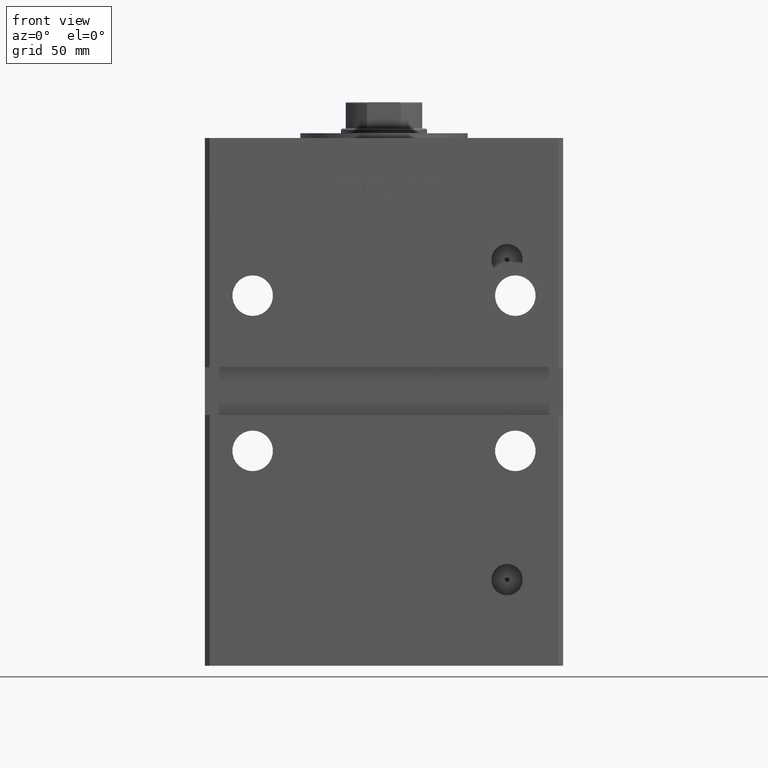
[diagram: clean part render]
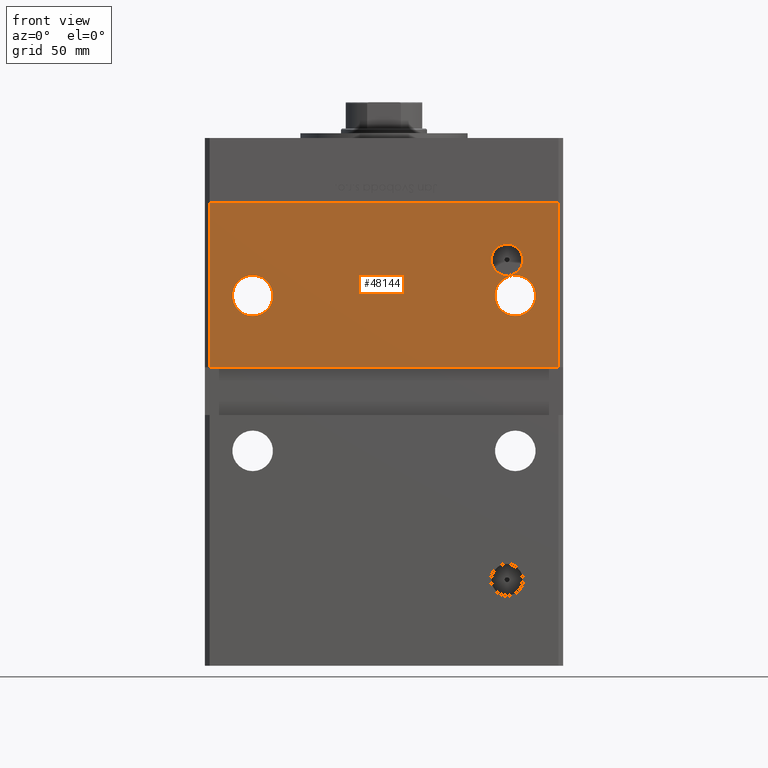
[diagram: same view with one face highlighted and labeled with its STEP entity id]
A machine part, front view. The second image highlights one B-rep face of the part: STEP entity #48144.
In plain terms, the highlighted planar face has unit normal (0, 1, 0).
Its self-contained STEP definition (entity closure, byte-faithful):
#282 = LINE ( 'NONE', #17133, #50339 ) ;
#431 = DIRECTION ( 'NONE',  ( -0.000000000000000000, 1.000000000000000000, -0.000000000000000000 ) ) ;
#790 = VERTEX_POINT ( 'NONE', #50858 ) ;
#2121 = FACE_BOUND ( 'NONE', #19448, .T. ) ;
#2209 = DIRECTION ( 'NONE',  ( 0.000000000000000000, 0.000000000000000000, 1.000000000000000000 ) ) ;
#3310 = ORIENTED_EDGE ( 'NONE', *, *, #8136, .T. ) ;
#3389 = CARTESIAN_POINT ( 'NONE',  ( 55.00000000000000000, -62.50000000000000000, 128.0000000000000000 ) ) ;
#3619 = EDGE_LOOP ( 'NONE', ( #26176, #9004 ) ) ;
#3982 = DIRECTION ( 'NONE',  ( 0.000000000000000000, 0.000000000000000000, 1.000000000000000000 ) ) ;
#4206 = CARTESIAN_POINT ( 'NONE',  ( -55.00000000000000000, -62.50000000000000000, 128.0000000000000000 ) ) ;
#5241 = EDGE_CURVE ( 'NONE', #790, #46536, #35485, .T. ) ;
#5485 = LINE ( 'NONE', #21817, #37308 ) ;
#6156 = PLANE ( 'NONE',  #14754 ) ;
#6814 = CARTESIAN_POINT ( 'NONE',  ( -72.99999999999998579, -62.50000000000000000, 98.00000000000000000 ) ) ;
#7055 = ORIENTED_EDGE ( 'NONE', *, *, #5241, .T. ) ;
#7724 = CIRCLE ( 'NONE', #15395, 6.580000000000002736 ) ;
#8136 = EDGE_CURVE ( 'NONE', #40998, #25686, #5485, .T. ) ;
#8568 = AXIS2_PLACEMENT_3D ( 'NONE', #3389, #44135, #24015 ) ;
#9004 = ORIENTED_EDGE ( 'NONE', *, *, #21034, .T. ) ;
#9899 = DIRECTION ( 'NONE',  ( 0.000000000000000000, 1.000000000000000000, 0.000000000000000000 ) ) ;
#10159 = CARTESIAN_POINT ( 'NONE',  ( 55.00000000000000000, -62.50000000000000000, 119.5000000000000000 ) ) ;
#11459 = CARTESIAN_POINT ( 'NONE',  ( 51.49999999999996447, -62.50000000000000000, 136.4200000000000159 ) ) ;
#13746 = ORIENTED_EDGE ( 'NONE', *, *, #21746, .T. ) ;
#13808 = EDGE_LOOP ( 'NONE', ( #3310, #50035, #35972, #27696 ) ) ;
#14754 = AXIS2_PLACEMENT_3D ( 'NONE', #50655, #9899, #21450 ) ;
#15391 = EDGE_CURVE ( 'NONE', #48237, #25686, #282, .T. ) ;
#15394 = CARTESIAN_POINT ( 'NONE',  ( 72.99999999999998579, -62.50000000000000000, 167.0000000000000000 ) ) ;
#15395 = AXIS2_PLACEMENT_3D ( 'NONE', #42218, #431, #17795 ) ;
#15417 = VECTOR ( 'NONE', #48950, 1000.000000000000000 ) ;
#15488 = CARTESIAN_POINT ( 'NONE',  ( -55.00000000000000000, -62.50000000000000000, 136.5000000000000000 ) ) ;
#15767 = CARTESIAN_POINT ( 'NONE',  ( 72.99999999999998579, -62.50000000000000000, 98.00000000000000000 ) ) ;
#17133 = CARTESIAN_POINT ( 'NONE',  ( -74.99999999999998579, -62.50000000000000000, 98.00000000000000000 ) ) ;
#17163 = VERTEX_POINT ( 'NONE', #48273 ) ;
#17795 = DIRECTION ( 'NONE',  ( 0.000000000000000000, 0.000000000000000000, -1.000000000000000000 ) ) ;
#19254 = ORIENTED_EDGE ( 'NONE', *, *, #21167, .T. ) ;
#19448 = EDGE_LOOP ( 'NONE', ( #46345, #7055 ) ) ;
#20886 = AXIS2_PLACEMENT_3D ( 'NONE', #27108, #22308, #2209 ) ;
#21034 = EDGE_CURVE ( 'NONE', #25470, #50907, #47938, .T. ) ;
#21167 = EDGE_CURVE ( 'NONE', #17163, #24120, #7724, .T. ) ;
#21450 = DIRECTION ( 'NONE',  ( 0.000000000000000000, -0.000000000000000000, 1.000000000000000000 ) ) ;
#21746 = EDGE_CURVE ( 'NONE', #24120, #17163, #33388, .T. ) ;
#21817 = CARTESIAN_POINT ( 'NONE',  ( -72.99999999999998579, -62.50000000000000000, 167.0000000000000000 ) ) ;
#22152 = AXIS2_PLACEMENT_3D ( 'NONE', #35100, #31076, #26267 ) ;
#22308 = DIRECTION ( 'NONE',  ( 0.000000000000000000, 1.000000000000000000, 0.000000000000000000 ) ) ;
#22979 = CARTESIAN_POINT ( 'NONE',  ( 72.99999999999998579, -62.50000000000000000, 167.0000000000000000 ) ) ;
#23841 = CIRCLE ( 'NONE', #46130, 8.500000000000007105 ) ;
#24015 = DIRECTION ( 'NONE',  ( 0.000000000000000000, 0.000000000000000000, 1.000000000000000000 ) ) ;
#24120 = VERTEX_POINT ( 'NONE', #11459 ) ;
#25470 = VERTEX_POINT ( 'NONE', #10159 ) ;
#25686 = VERTEX_POINT ( 'NONE', #6814 ) ;
#25987 = FACE_OUTER_BOUND ( 'NONE', #13808, .T. ) ;
#26176 = ORIENTED_EDGE ( 'NONE', *, *, #28544, .T. ) ;
#26267 = DIRECTION ( 'NONE',  ( 0.000000000000000000, 0.000000000000000000, -1.000000000000000000 ) ) ;
#26712 = CARTESIAN_POINT ( 'NONE',  ( -72.99999999999998579, -62.50000000000000000, 167.0000000000000000 ) ) ;
#27108 = CARTESIAN_POINT ( 'NONE',  ( -55.00000000000000000, -62.50000000000000000, 128.0000000000000000 ) ) ;
#27696 = ORIENTED_EDGE ( 'NONE', *, *, #38278, .F. ) ;
#28369 = DIRECTION ( 'NONE',  ( 0.000000000000000000, 1.000000000000000000, 0.000000000000000000 ) ) ;
#28544 = EDGE_CURVE ( 'NONE', #50907, #25470, #23841, .T. ) ;
#31076 = DIRECTION ( 'NONE',  ( -0.000000000000000000, 1.000000000000000000, -0.000000000000000000 ) ) ;
#33388 = CIRCLE ( 'NONE', #22152, 6.580000000000002736 ) ;
#33774 = FACE_BOUND ( 'NONE', #34957, .T. ) ;
#34957 = EDGE_LOOP ( 'NONE', ( #13746, #19254 ) ) ;
#35100 = CARTESIAN_POINT ( 'NONE',  ( 51.49999999999996447, -62.50000000000000000, 143.0000000000000284 ) ) ;
#35485 = CIRCLE ( 'NONE', #36336, 8.500000000000007105 ) ;
#35972 = ORIENTED_EDGE ( 'NONE', *, *, #37070, .F. ) ;
#36336 = AXIS2_PLACEMENT_3D ( 'NONE', #4206, #44954, #52458 ) ;
#37070 = EDGE_CURVE ( 'NONE', #51578, #48237, #51934, .T. ) ;
#37308 = VECTOR ( 'NONE', #38180, 1000.000000000000000 ) ;
#38180 = DIRECTION ( 'NONE',  ( -0.000000000000000000, -0.000000000000000000, -1.000000000000000000 ) ) ;
#38278 = EDGE_CURVE ( 'NONE', #40998, #51578, #52699, .T. ) ;
#39343 = DIRECTION ( 'NONE',  ( -0.000000000000000000, -0.000000000000000000, -1.000000000000000000 ) ) ;
#40702 = CARTESIAN_POINT ( 'NONE',  ( 55.00000000000000000, -62.50000000000000000, 128.0000000000000000 ) ) ;
#40998 = VERTEX_POINT ( 'NONE', #26712 ) ;
#41441 = CIRCLE ( 'NONE', #20886, 8.500000000000007105 ) ;
#42218 = CARTESIAN_POINT ( 'NONE',  ( 51.49999999999996447, -62.50000000000000000, 143.0000000000000284 ) ) ;
#44135 = DIRECTION ( 'NONE',  ( 0.000000000000000000, 1.000000000000000000, 0.000000000000000000 ) ) ;
#44619 = CARTESIAN_POINT ( 'NONE',  ( 55.00000000000000000, -62.50000000000000000, 136.5000000000000000 ) ) ;
#44954 = DIRECTION ( 'NONE',  ( 0.000000000000000000, 1.000000000000000000, 0.000000000000000000 ) ) ;
#45310 = DIRECTION ( 'NONE',  ( -1.000000000000000000, -0.000000000000000000, -0.000000000000000000 ) ) ;
#46130 = AXIS2_PLACEMENT_3D ( 'NONE', #40702, #28369, #3982 ) ;
#46345 = ORIENTED_EDGE ( 'NONE', *, *, #51989, .T. ) ;
#46536 = VERTEX_POINT ( 'NONE', #15488 ) ;
#47065 = VECTOR ( 'NONE', #39343, 1000.000000000000000 ) ;
#47938 = CIRCLE ( 'NONE', #8568, 8.500000000000007105 ) ;
#48144 = ADVANCED_FACE ( 'NONE', ( #51168, #2121, #25987, #33774 ), #6156, .F. ) ;
#48237 = VERTEX_POINT ( 'NONE', #15767 ) ;
#48273 = CARTESIAN_POINT ( 'NONE',  ( 51.49999999999996447, -62.50000000000000000, 149.5800000000000125 ) ) ;
#48683 = CARTESIAN_POINT ( 'NONE',  ( -72.99999999999998579, -62.50000000000000000, 167.0000000000000000 ) ) ;
#48950 = DIRECTION ( 'NONE',  ( 1.000000000000000000, 0.000000000000000000, 0.000000000000000000 ) ) ;
#50035 = ORIENTED_EDGE ( 'NONE', *, *, #15391, .F. ) ;
#50339 = VECTOR ( 'NONE', #45310, 1000.000000000000000 ) ;
#50655 = CARTESIAN_POINT ( 'NONE',  ( -72.99999999999998579, -62.50000000000000000, 167.0000000000000000 ) ) ;
#50858 = CARTESIAN_POINT ( 'NONE',  ( -55.00000000000000000, -62.50000000000000000, 119.5000000000000000 ) ) ;
#50907 = VERTEX_POINT ( 'NONE', #44619 ) ;
#51168 = FACE_BOUND ( 'NONE', #3619, .T. ) ;
#51578 = VERTEX_POINT ( 'NONE', #15394 ) ;
#51934 = LINE ( 'NONE', #22979, #47065 ) ;
#51989 = EDGE_CURVE ( 'NONE', #46536, #790, #41441, .T. ) ;
#52458 = DIRECTION ( 'NONE',  ( 0.000000000000000000, 0.000000000000000000, 1.000000000000000000 ) ) ;
#52699 = LINE ( 'NONE', #48683, #15417 ) ;